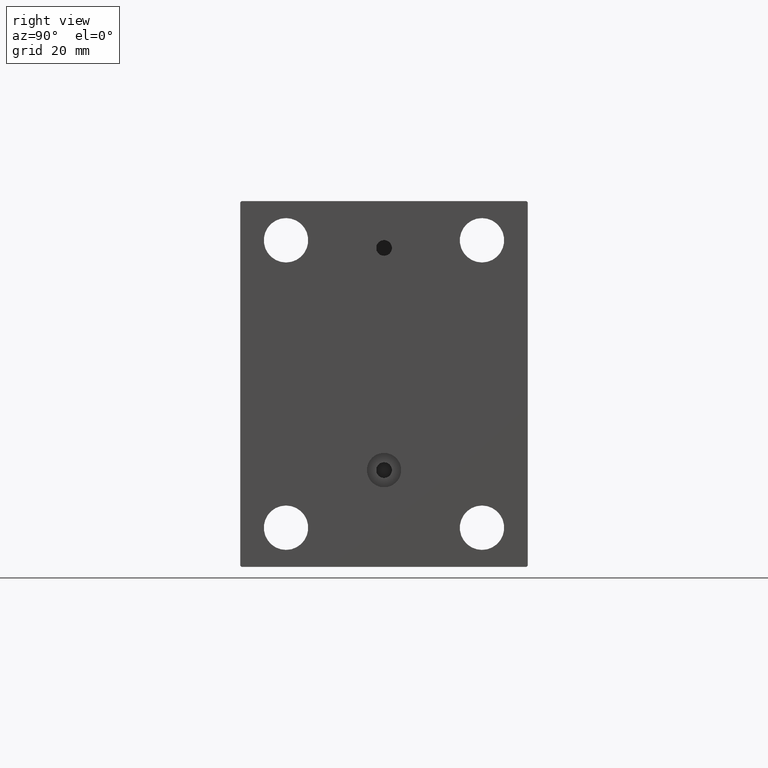
[diagram: clean part render]
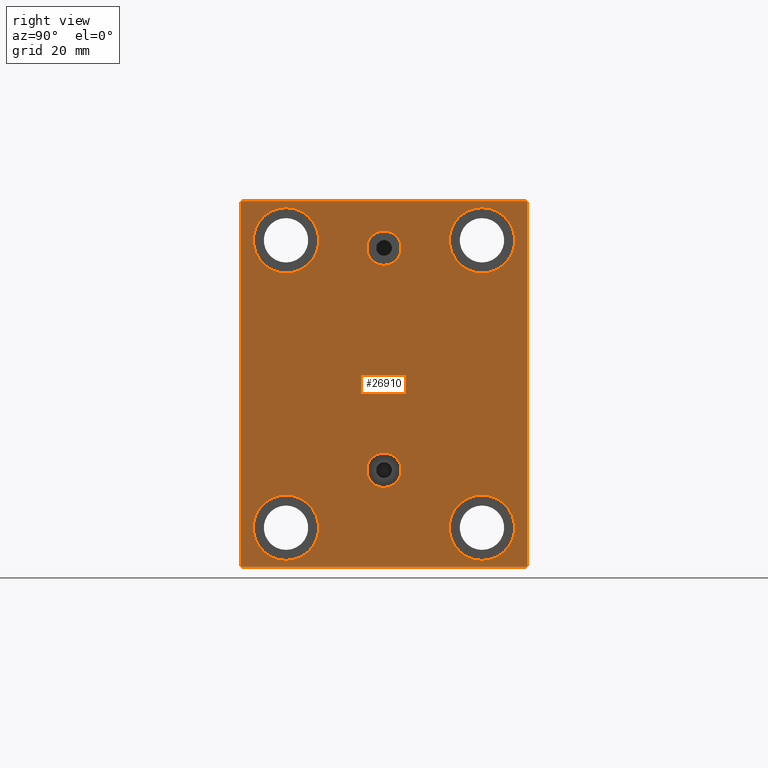
[diagram: same view with one face highlighted and labeled with its STEP entity id]
A machine part, right view. The second image highlights one B-rep face of the part: STEP entity #26910.
In plain terms, the highlighted planar face has unit normal (1, 0, 0).
Its self-contained STEP definition (entity closure, byte-faithful):
#260 = LINE ( 'NONE', #8071, #987 ) ;
#291 = DIRECTION ( 'NONE',  ( 0.000000000000000000, 0.000000000000000000, -1.000000000000000000 ) ) ;
#987 = VECTOR ( 'NONE', #3937, 1000.000000000000000 ) ;
#1276 = DIRECTION ( 'NONE',  ( -0.000000000000000000, 0.7071067811865574537, -0.7071067811865376918 ) ) ;
#1765 = EDGE_CURVE ( 'NONE', #10552, #2553, #10658, .T. ) ;
#1902 = PLANE ( 'NONE',  #14726 ) ;
#2408 = VERTEX_POINT ( 'NONE', #3112 ) ;
#2426 = VERTEX_POINT ( 'NONE', #41777 ) ;
#2553 = VERTEX_POINT ( 'NONE', #35331 ) ;
#2614 = CARTESIAN_POINT ( 'NONE',  ( 143.0000000000000000, -37.50000000000002132, -67.49999999999998579 ) ) ;
#3112 = CARTESIAN_POINT ( 'NONE',  ( 143.0000000000000000, 54.49999999999999289, 70.00000000000000000 ) ) ;
#3161 = CARTESIAN_POINT ( 'NONE',  ( 143.0000000000000000, -37.50000000000000711, 67.50000000000000000 ) ) ;
#3300 = AXIS2_PLACEMENT_3D ( 'NONE', #13611, #27676, #41699 ) ;
#3406 = AXIS2_PLACEMENT_3D ( 'NONE', #7642, #3727, #18016 ) ;
#3433 = CARTESIAN_POINT ( 'NONE',  ( 143.0000000000000000, 62.24999999999999289, 62.24999999999999289 ) ) ;
#3727 = DIRECTION ( 'NONE',  ( -1.000000000000000000, -0.000000000000000000, -0.000000000000000000 ) ) ;
#3937 = DIRECTION ( 'NONE',  ( 0.000000000000000000, -1.982541115402065110E-16, 1.000000000000000000 ) ) ;
#3991 = ORIENTED_EDGE ( 'NONE', *, *, #18423, .T. ) ;
#4078 = EDGE_CURVE ( 'NONE', #28838, #39461, #14556, .T. ) ;
#4875 = CIRCLE ( 'NONE', #13712, 6.580000000000002736 ) ;
#5356 = FACE_BOUND ( 'NONE', #15743, .T. ) ;
#5750 = CARTESIAN_POINT ( 'NONE',  ( 143.0000000000000000, 37.49999999999997868, -42.49999999999999289 ) ) ;
#5996 = CARTESIAN_POINT ( 'NONE',  ( 143.0000000000000000, -54.50000000000003553, 69.99999999999998579 ) ) ;
#6038 = CARTESIAN_POINT ( 'NONE',  ( 143.0000000000000000, -62.24999999999927525, -62.25000000000100897 ) ) ;
#6075 = VERTEX_POINT ( 'NONE', #3161 ) ;
#6147 = ORIENTED_EDGE ( 'NONE', *, *, #15924, .F. ) ;
#6184 = DIRECTION ( 'NONE',  ( -1.000000000000000000, -0.000000000000000000, -0.000000000000000000 ) ) ;
#6402 = ORIENTED_EDGE ( 'NONE', *, *, #40073, .T. ) ;
#6747 = DIRECTION ( 'NONE',  ( -1.000000000000000000, -0.000000000000000000, -0.000000000000000000 ) ) ;
#6811 = EDGE_CURVE ( 'NONE', #28610, #32058, #7813, .T. ) ;
#7131 = CARTESIAN_POINT ( 'NONE',  ( 143.0000000000000000, 4.041334437186266200E-15, -33.00000000000000000 ) ) ;
#7212 = CIRCLE ( 'NONE', #36621, 12.49999999999999645 ) ;
#7307 = CIRCLE ( 'NONE', #22020, 6.580000000000002736 ) ;
#7642 = CARTESIAN_POINT ( 'NONE',  ( 143.0000000000000000, 37.50000000000000711, 55.00000000000000711 ) ) ;
#7739 = ORIENTED_EDGE ( 'NONE', *, *, #9383, .F. ) ;
#7813 = CIRCLE ( 'NONE', #3406, 12.49999999999999645 ) ;
#8004 = LINE ( 'NONE', #24832, #27465 ) ;
#8071 = CARTESIAN_POINT ( 'NONE',  ( 143.0000000000000000, 55.00000000000002132, -70.00000000000000000 ) ) ;
#8363 = VERTEX_POINT ( 'NONE', #31807 ) ;
#8385 = CARTESIAN_POINT ( 'NONE',  ( 143.0000000000000000, -55.00000000000000711, 69.50000000000001421 ) ) ;
#8544 = ORIENTED_EDGE ( 'NONE', *, *, #10909, .T. ) ;
#9328 = VERTEX_POINT ( 'NONE', #5996 ) ;
#9383 = EDGE_CURVE ( 'NONE', #27365, #16953, #4875, .T. ) ;
#9609 = DIRECTION ( 'NONE',  ( 0.000000000000000000, -1.000000000000000000, -1.261617073437677999E-16 ) ) ;
#9952 = CARTESIAN_POINT ( 'NONE',  ( 143.0000000000000000, -55.00000000000000711, -70.00000000000002842 ) ) ;
#10051 = DIRECTION ( 'NONE',  ( 1.000000000000000000, 0.000000000000000000, 0.000000000000000000 ) ) ;
#10552 = VERTEX_POINT ( 'NONE', #36752 ) ;
#10658 = CIRCLE ( 'NONE', #19521, 6.580000000000002736 ) ;
#10785 = EDGE_LOOP ( 'NONE', ( #27987, #8544 ) ) ;
#10881 = CARTESIAN_POINT ( 'NONE',  ( 143.0000000000000000, -37.50000000000002132, -54.99999999999999289 ) ) ;
#10909 = EDGE_CURVE ( 'NONE', #22937, #18978, #38759, .T. ) ;
#11236 = EDGE_CURVE ( 'NONE', #6075, #40528, #28482, .T. ) ;
#11486 = LINE ( 'NONE', #15604, #20525 ) ;
#12152 = DIRECTION ( 'NONE',  ( -0.000000000000000000, 0.7071067811865474617, 0.7071067811865474617 ) ) ;
#13068 = DIRECTION ( 'NONE',  ( 0.000000000000000000, 0.000000000000000000, 1.000000000000000000 ) ) ;
#13519 = DIRECTION ( 'NONE',  ( 1.000000000000000000, 0.000000000000000000, -0.000000000000000000 ) ) ;
#13611 = CARTESIAN_POINT ( 'NONE',  ( 143.0000000000000000, 37.49999999999997868, -54.99999999999999289 ) ) ;
#13712 = AXIS2_PLACEMENT_3D ( 'NONE', #7131, #38669, #18189 ) ;
#13771 = EDGE_CURVE ( 'NONE', #18978, #22937, #7212, .T. ) ;
#14181 = ORIENTED_EDGE ( 'NONE', *, *, #44181, .T. ) ;
#14257 = CARTESIAN_POINT ( 'NONE',  ( 143.0000000000000000, 37.49999999999997868, -54.99999999999999289 ) ) ;
#14556 = LINE ( 'NONE', #17556, #31962 ) ;
#14726 = AXIS2_PLACEMENT_3D ( 'NONE', #34145, #27251, #15709 ) ;
#15399 = VECTOR ( 'NONE', #31975, 1000.000000000000114 ) ;
#15604 = CARTESIAN_POINT ( 'NONE',  ( 143.0000000000000000, 62.25000000000002842, -62.25000000000002842 ) ) ;
#15709 = DIRECTION ( 'NONE',  ( 0.000000000000000000, 0.000000000000000000, -1.000000000000000000 ) ) ;
#15743 = EDGE_LOOP ( 'NONE', ( #43021, #43782 ) ) ;
#15924 = EDGE_CURVE ( 'NONE', #16953, #27365, #7307, .T. ) ;
#16134 = CARTESIAN_POINT ( 'NONE',  ( 143.0000000000000000, -55.00000000000000711, -69.50000000000007105 ) ) ;
#16169 = DIRECTION ( 'NONE',  ( 0.000000000000000000, 1.000000000000000000, 2.523234146875355012E-16 ) ) ;
#16186 = ORIENTED_EDGE ( 'NONE', *, *, #4078, .T. ) ;
#16399 = FACE_BOUND ( 'NONE', #10785, .T. ) ;
#16484 = VECTOR ( 'NONE', #9609, 1000.000000000000000 ) ;
#16953 = VERTEX_POINT ( 'NONE', #36883 ) ;
#16988 = CARTESIAN_POINT ( 'NONE',  ( 143.0000000000000000, -8.775864102628257178E-15, 52.00000000000000711 ) ) ;
#17556 = CARTESIAN_POINT ( 'NONE',  ( 143.0000000000000000, -55.00000000000000711, 69.99999999999998579 ) ) ;
#17682 = EDGE_CURVE ( 'NONE', #2553, #10552, #28648, .T. ) ;
#17939 = LINE ( 'NONE', #3433, #15399 ) ;
#18016 = DIRECTION ( 'NONE',  ( 0.000000000000000000, 0.000000000000000000, 1.000000000000000000 ) ) ;
#18154 = CARTESIAN_POINT ( 'NONE',  ( 143.0000000000000000, 37.50000000000000711, 67.50000000000000000 ) ) ;
#18189 = DIRECTION ( 'NONE',  ( 0.000000000000000000, 0.000000000000000000, 1.000000000000000000 ) ) ;
#18204 = CARTESIAN_POINT ( 'NONE',  ( 143.0000000000000000, -37.50000000000000711, 55.00000000000000711 ) ) ;
#18423 = EDGE_CURVE ( 'NONE', #8363, #40509, #11486, .T. ) ;
#18652 = DIRECTION ( 'NONE',  ( -1.000000000000000000, -0.000000000000000000, -0.000000000000000000 ) ) ;
#18882 = DIRECTION ( 'NONE',  ( 0.000000000000000000, 0.000000000000000000, 1.000000000000000000 ) ) ;
#18978 = VERTEX_POINT ( 'NONE', #2614 ) ;
#19162 = EDGE_LOOP ( 'NONE', ( #6147, #7739 ) ) ;
#19423 = FACE_BOUND ( 'NONE', #20769, .T. ) ;
#19521 = AXIS2_PLACEMENT_3D ( 'NONE', #38942, #31136, #31800 ) ;
#19542 = CARTESIAN_POINT ( 'NONE',  ( 143.0000000000000000, 54.99999999999999289, 70.00000000000000000 ) ) ;
#20073 = EDGE_CURVE ( 'NONE', #40528, #6075, #39716, .T. ) ;
#20123 = FACE_BOUND ( 'NONE', #19162, .T. ) ;
#20214 = DIRECTION ( 'NONE',  ( -1.000000000000000000, -0.000000000000000000, -0.000000000000000000 ) ) ;
#20251 = ORIENTED_EDGE ( 'NONE', *, *, #17682, .F. ) ;
#20525 = VECTOR ( 'NONE', #12152, 1000.000000000000114 ) ;
#20769 = EDGE_LOOP ( 'NONE', ( #41395, #28703 ) ) ;
#21495 = ORIENTED_EDGE ( 'NONE', *, *, #25281, .T. ) ;
#22020 = AXIS2_PLACEMENT_3D ( 'NONE', #24134, #13519, #13068 ) ;
#22733 = DIRECTION ( 'NONE',  ( -1.000000000000000000, -0.000000000000000000, -0.000000000000000000 ) ) ;
#22876 = FACE_BOUND ( 'NONE', #39599, .T. ) ;
#22937 = VERTEX_POINT ( 'NONE', #43179 ) ;
#22967 = DIRECTION ( 'NONE',  ( 0.000000000000000000, 0.000000000000000000, 1.000000000000000000 ) ) ;
#23196 = CARTESIAN_POINT ( 'NONE',  ( 143.0000000000000000, -37.50000000000002132, -54.99999999999999289 ) ) ;
#23329 = FACE_BOUND ( 'NONE', #25874, .T. ) ;
#23854 = CIRCLE ( 'NONE', #34878, 12.49999999999999645 ) ;
#24134 = CARTESIAN_POINT ( 'NONE',  ( 143.0000000000000000, 4.041334437186266200E-15, -33.00000000000000000 ) ) ;
#24394 = CARTESIAN_POINT ( 'NONE',  ( 143.0000000000000000, 54.99999999999999289, 69.50000000000000000 ) ) ;
#24435 = ORIENTED_EDGE ( 'NONE', *, *, #36296, .T. ) ;
#24832 = CARTESIAN_POINT ( 'NONE',  ( 143.0000000000000000, -62.25000000000000711, 62.25000000000000711 ) ) ;
#24883 = VERTEX_POINT ( 'NONE', #41474 ) ;
#25281 = EDGE_CURVE ( 'NONE', #36422, #2408, #17939, .T. ) ;
#25681 = CARTESIAN_POINT ( 'NONE',  ( 143.0000000000000000, 55.00000000000002132, -69.50000000000002842 ) ) ;
#25839 = CARTESIAN_POINT ( 'NONE',  ( 143.0000000000000000, 4.847152031025224453E-15, -26.41999999999999815 ) ) ;
#25874 = EDGE_LOOP ( 'NONE', ( #27983, #20251 ) ) ;
#26777 = LINE ( 'NONE', #9952, #43022 ) ;
#26910 = ADVANCED_FACE ( 'NONE', ( #23329, #20123, #22876, #5356, #19423, #16399, #44728 ), #1902, .T. ) ;
#27238 = LINE ( 'NONE', #6038, #43664 ) ;
#27251 = DIRECTION ( 'NONE',  ( 1.000000000000000000, 0.000000000000000000, 0.000000000000000000 ) ) ;
#27365 = VERTEX_POINT ( 'NONE', #25839 ) ;
#27465 = VECTOR ( 'NONE', #42092, 1000.000000000000114 ) ;
#27550 = CIRCLE ( 'NONE', #3300, 12.49999999999999645 ) ;
#27676 = DIRECTION ( 'NONE',  ( -1.000000000000000000, -0.000000000000000000, -0.000000000000000000 ) ) ;
#27972 = AXIS2_PLACEMENT_3D ( 'NONE', #31052, #6184, #37953 ) ;
#27983 = ORIENTED_EDGE ( 'NONE', *, *, #1765, .F. ) ;
#27987 = ORIENTED_EDGE ( 'NONE', *, *, #13771, .T. ) ;
#28317 = DIRECTION ( 'NONE',  ( -1.000000000000000000, -0.000000000000000000, -0.000000000000000000 ) ) ;
#28482 = CIRCLE ( 'NONE', #43201, 12.49999999999999645 ) ;
#28610 = VERTEX_POINT ( 'NONE', #18154 ) ;
#28648 = CIRCLE ( 'NONE', #45568, 6.580000000000002736 ) ;
#28703 = ORIENTED_EDGE ( 'NONE', *, *, #6811, .T. ) ;
#28838 = VERTEX_POINT ( 'NONE', #8385 ) ;
#28946 = DIRECTION ( 'NONE',  ( 0.000000000000000000, 0.000000000000000000, 1.000000000000000000 ) ) ;
#29806 = CARTESIAN_POINT ( 'NONE',  ( 143.0000000000000000, -37.50000000000000711, 42.50000000000000711 ) ) ;
#31052 = CARTESIAN_POINT ( 'NONE',  ( 143.0000000000000000, -37.50000000000000711, 55.00000000000000711 ) ) ;
#31136 = DIRECTION ( 'NONE',  ( 1.000000000000000000, 0.000000000000000000, 0.000000000000000000 ) ) ;
#31430 = AXIS2_PLACEMENT_3D ( 'NONE', #10881, #6747, #35072 ) ;
#31533 = DIRECTION ( 'NONE',  ( 0.000000000000000000, 0.000000000000000000, 1.000000000000000000 ) ) ;
#31800 = DIRECTION ( 'NONE',  ( 0.000000000000000000, 0.000000000000000000, -1.000000000000000000 ) ) ;
#31807 = CARTESIAN_POINT ( 'NONE',  ( 143.0000000000000000, 54.50000000000004974, -70.00000000000000000 ) ) ;
#31882 = AXIS2_PLACEMENT_3D ( 'NONE', #14257, #28317, #31533 ) ;
#31962 = VECTOR ( 'NONE', #291, 1000.000000000000000 ) ;
#31975 = DIRECTION ( 'NONE',  ( -0.000000000000000000, -0.7071067811865474617, 0.7071067811865474617 ) ) ;
#32058 = VERTEX_POINT ( 'NONE', #42885 ) ;
#32414 = ORIENTED_EDGE ( 'NONE', *, *, #43868, .T. ) ;
#33256 = EDGE_LOOP ( 'NONE', ( #32414, #39408, #16186, #35386, #14181, #3991, #24435, #21495 ) ) ;
#34145 = CARTESIAN_POINT ( 'NONE',  ( 143.0000000000000000, 0.000000000000000000, 0.000000000000000000 ) ) ;
#34264 = LINE ( 'NONE', #19542, #16484 ) ;
#34878 = AXIS2_PLACEMENT_3D ( 'NONE', #40991, #22733, #28946 ) ;
#35072 = DIRECTION ( 'NONE',  ( 0.000000000000000000, 0.000000000000000000, 1.000000000000000000 ) ) ;
#35331 = CARTESIAN_POINT ( 'NONE',  ( 143.0000000000000000, -7.970046508789298136E-15, 58.58000000000000540 ) ) ;
#35386 = ORIENTED_EDGE ( 'NONE', *, *, #41959, .T. ) ;
#35717 = EDGE_CURVE ( 'NONE', #9328, #28838, #8004, .T. ) ;
#36296 = EDGE_CURVE ( 'NONE', #40509, #36422, #260, .T. ) ;
#36422 = VERTEX_POINT ( 'NONE', #24394 ) ;
#36621 = AXIS2_PLACEMENT_3D ( 'NONE', #23196, #20214, #22967 ) ;
#36752 = CARTESIAN_POINT ( 'NONE',  ( 143.0000000000000000, -8.775864102628257178E-15, 45.42000000000000171 ) ) ;
#36883 = CARTESIAN_POINT ( 'NONE',  ( 143.0000000000000000, 4.041334437186266200E-15, -39.58000000000000540 ) ) ;
#37026 = CIRCLE ( 'NONE', #31882, 12.49999999999999645 ) ;
#37547 = EDGE_CURVE ( 'NONE', #2426, #42207, #37026, .T. ) ;
#37953 = DIRECTION ( 'NONE',  ( 0.000000000000000000, 0.000000000000000000, 1.000000000000000000 ) ) ;
#38669 = DIRECTION ( 'NONE',  ( 1.000000000000000000, 0.000000000000000000, -0.000000000000000000 ) ) ;
#38689 = EDGE_CURVE ( 'NONE', #32058, #28610, #23854, .T. ) ;
#38759 = CIRCLE ( 'NONE', #31430, 12.49999999999999645 ) ;
#38942 = CARTESIAN_POINT ( 'NONE',  ( 143.0000000000000000, -8.775864102628257178E-15, 52.00000000000000711 ) ) ;
#39408 = ORIENTED_EDGE ( 'NONE', *, *, #35717, .T. ) ;
#39461 = VERTEX_POINT ( 'NONE', #16134 ) ;
#39599 = EDGE_LOOP ( 'NONE', ( #40944, #6402 ) ) ;
#39716 = CIRCLE ( 'NONE', #27972, 12.49999999999999645 ) ;
#40073 = EDGE_CURVE ( 'NONE', #42207, #2426, #27550, .T. ) ;
#40509 = VERTEX_POINT ( 'NONE', #25681 ) ;
#40528 = VERTEX_POINT ( 'NONE', #29806 ) ;
#40944 = ORIENTED_EDGE ( 'NONE', *, *, #37547, .T. ) ;
#40991 = CARTESIAN_POINT ( 'NONE',  ( 143.0000000000000000, 37.50000000000000711, 55.00000000000000711 ) ) ;
#41395 = ORIENTED_EDGE ( 'NONE', *, *, #38689, .T. ) ;
#41474 = CARTESIAN_POINT ( 'NONE',  ( 143.0000000000000000, -54.50000000000003553, -70.00000000000002842 ) ) ;
#41699 = DIRECTION ( 'NONE',  ( 0.000000000000000000, 0.000000000000000000, 1.000000000000000000 ) ) ;
#41777 = CARTESIAN_POINT ( 'NONE',  ( 143.0000000000000000, 37.49999999999997868, -67.49999999999998579 ) ) ;
#41959 = EDGE_CURVE ( 'NONE', #39461, #24883, #27238, .T. ) ;
#42056 = DIRECTION ( 'NONE',  ( 0.000000000000000000, 0.000000000000000000, -1.000000000000000000 ) ) ;
#42092 = DIRECTION ( 'NONE',  ( 0.000000000000000000, -0.7071067811865474617, -0.7071067811865474617 ) ) ;
#42207 = VERTEX_POINT ( 'NONE', #5750 ) ;
#42885 = CARTESIAN_POINT ( 'NONE',  ( 143.0000000000000000, 37.50000000000000711, 42.50000000000000711 ) ) ;
#43021 = ORIENTED_EDGE ( 'NONE', *, *, #20073, .T. ) ;
#43022 = VECTOR ( 'NONE', #16169, 1000.000000000000000 ) ;
#43179 = CARTESIAN_POINT ( 'NONE',  ( 143.0000000000000000, -37.50000000000002132, -42.49999999999999289 ) ) ;
#43201 = AXIS2_PLACEMENT_3D ( 'NONE', #18204, #18652, #18882 ) ;
#43664 = VECTOR ( 'NONE', #1276, 999.9999999999998863 ) ;
#43782 = ORIENTED_EDGE ( 'NONE', *, *, #11236, .T. ) ;
#43868 = EDGE_CURVE ( 'NONE', #2408, #9328, #34264, .T. ) ;
#44181 = EDGE_CURVE ( 'NONE', #24883, #8363, #26777, .T. ) ;
#44728 = FACE_OUTER_BOUND ( 'NONE', #33256, .T. ) ;
#45568 = AXIS2_PLACEMENT_3D ( 'NONE', #16988, #10051, #42056 ) ;